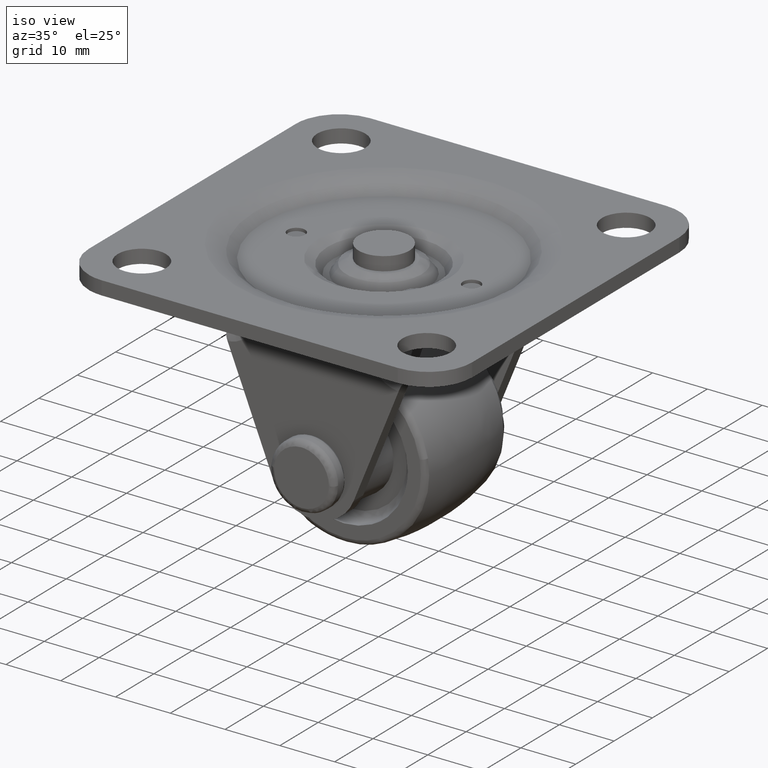
[diagram: clean part render]
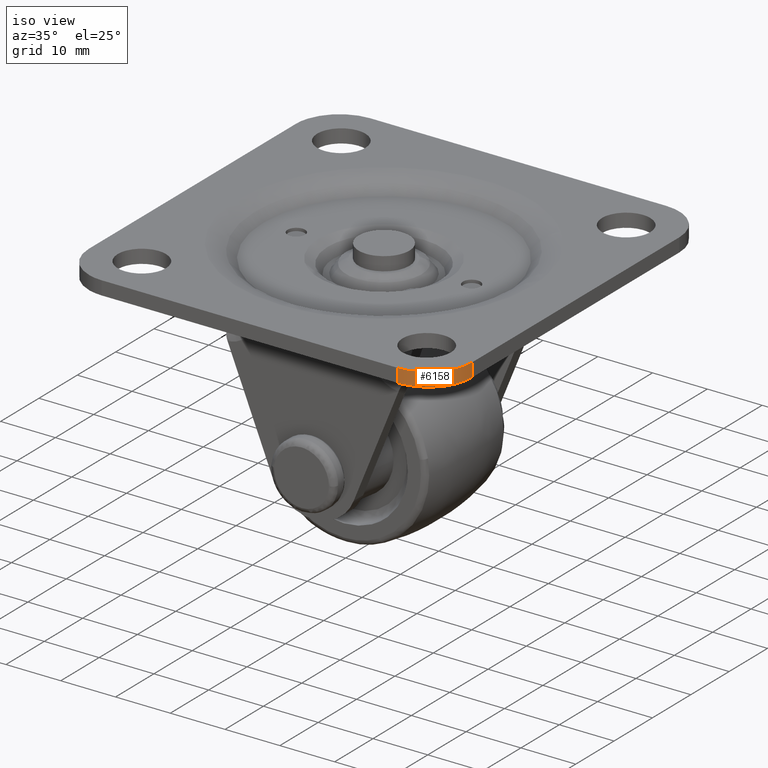
[diagram: same view with one face highlighted and labeled with its STEP entity id]
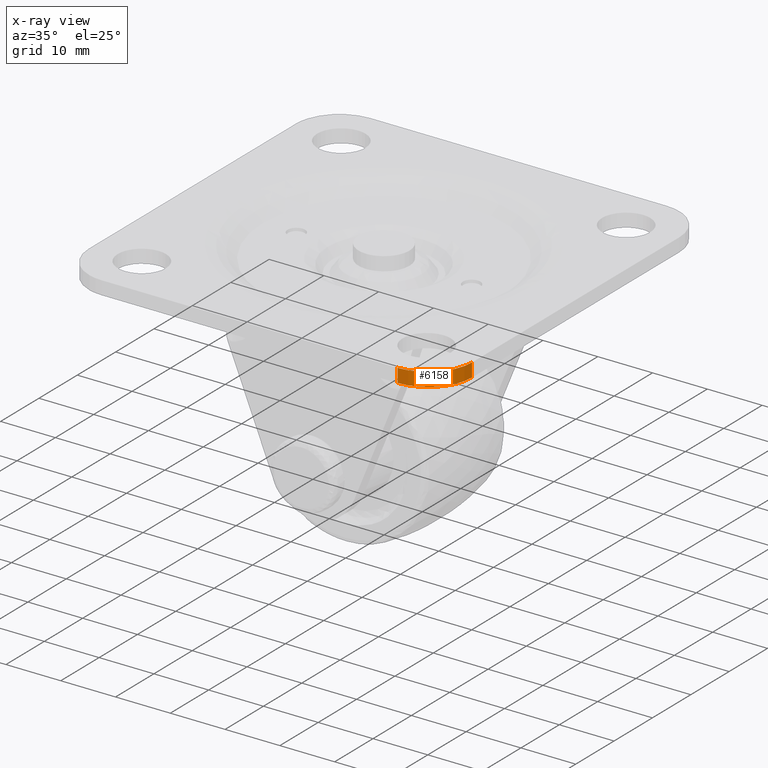
[diagram: x-ray of the same camera — body ghosted, the highlighted face saturated]
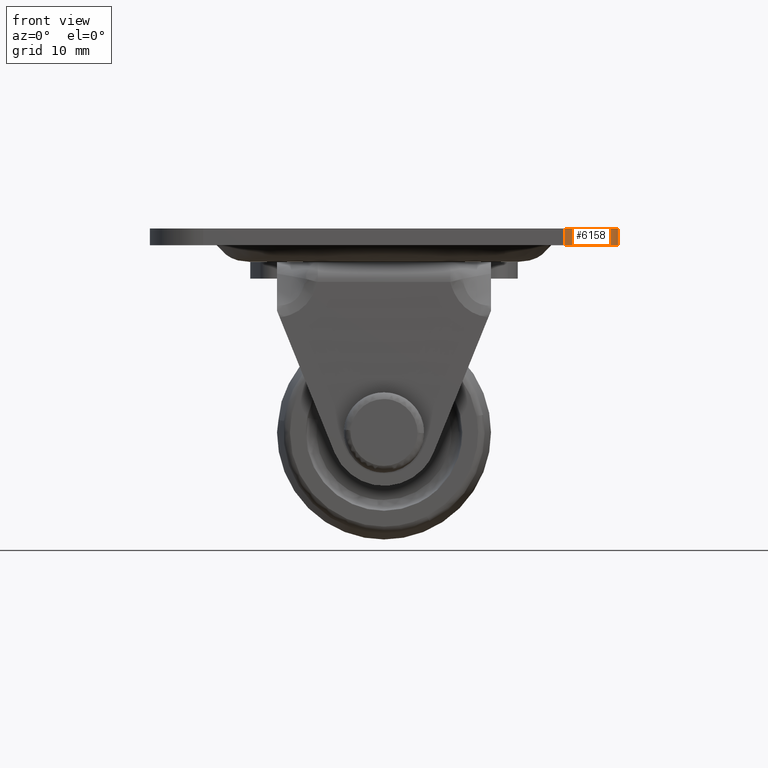
[diagram: same view with one face highlighted and labeled with its STEP entity id]
A machine part, iso view. The second image highlights one B-rep face of the part: STEP entity #6158.
The next image is the same camera in x-ray: the body ghosted, the highlighted face saturated — about 0% of this face is hidden behind the body in this view.
A second angle (front view) of the same face is appended — the face is thin or edge-on in the first view.
In plain terms, the highlighted face is a freeform B-spline surface patch.
Its self-contained STEP definition (entity closure, byte-faithful):
#6079=CARTESIAN_POINT('',(35.0,-26.999999860373649,30.500000000000000));
#6080=VERTEX_POINT('',#6079);
#6086=CARTESIAN_POINT('',(35.0,-26.999999860373649,28.0));
#6087=VERTEX_POINT('',#6086);
#6088=CARTESIAN_POINT('',(35.0,-26.999999860373649,28.0));
#6089=CARTESIAN_POINT('',(35.0,-26.999999860373649,30.500000000000000));
#6090=QUASI_UNIFORM_CURVE('',1,(#6088,#6089),.UNSPECIFIED.,.F.,.U.);
#6091=EDGE_CURVE('',#6087,#6080,#6090,.T.);
#6102=CARTESIAN_POINT('',(34.992385772654863,-26.651044901077309,27.937500000000000));
#6103=CARTESIAN_POINT('',(34.992385772654863,-26.651044901077309,30.564062499999999));
#6104=CARTESIAN_POINT('',(35.383475927487872,-35.608482115672281,27.937500000000007));
#6105=CARTESIAN_POINT('',(35.383475927487872,-35.608482115672281,30.564062499999999));
#6106=CARTESIAN_POINT('',(26.439535263651820,-34.980343305855349,27.937500000000000));
#6107=CARTESIAN_POINT('',(26.439535263651820,-34.980343305855349,30.564062499999995));
#6115=(BOUNDED_SURFACE()B_SPLINE_SURFACE(1,2,((#6102,#6104,#6106),(#6103,#6105,#6107)),.UNSPECIFIED.,.F.,.F.,.U.)B_SPLINE_SURFACE_WITH_KNOTS((2,2),(3,3),(0.0,2.626562499999999),(0.0,14.333940318735880),.UNSPECIFIED.)GEOMETRIC_REPRESENTATION_ITEM()RATIONAL_B_SPLINE_SURFACE(((1.0,0.664513898535122,0.996233561259061),(1.0,0.664513898535122,0.996233561259061)))REPRESENTATION_ITEM('')SURFACE());
#6116=CARTESIAN_POINT('',(27.0,-35.0,30.500000000000000));
#6117=VERTEX_POINT('',#6116);
#6118=CARTESIAN_POINT('',(27.0,-35.0,30.500000000000000));
#6119=CARTESIAN_POINT('',(27.359963960946342,-35.000005404667213,30.500000000000050));
#6120=CARTESIAN_POINT('',(28.210817130357810,-34.942516563033493,30.499999999999979));
#6121=CARTESIAN_POINT('',(29.395567395262951,-34.668831999999497,30.500000000000028));
#6122=CARTESIAN_POINT('',(30.701912356516971,-34.137108193935831,30.499999999999961));
#6123=CARTESIAN_POINT('',(31.901868210928338,-33.387556811179167,30.500000000000089));
#6124=CARTESIAN_POINT('',(33.074928849631242,-32.284330743048123,30.499999999999911));
#6125=CARTESIAN_POINT('',(33.973166393263973,-31.025477655901760,30.500000000000021));
#6126=CARTESIAN_POINT('',(34.540166470171059,-29.767019377376510,30.499999999999989));
#6127=CARTESIAN_POINT('',(34.907436895689258,-28.439855949299972,30.500000000000291));
#6128=CARTESIAN_POINT('',(35.000094463846089,-27.556327783162189,30.499999999999851));
#6129=CARTESIAN_POINT('',(35.0,-26.999999860373649,30.500000000000000));
#6130=B_SPLINE_CURVE_WITH_KNOTS('',3,(#6118,#6119,#6120,#6121,#6122,#6123,#6124,#6125,#6126,#6127,#6128,#6129),.UNSPECIFIED.,.F.,.U.,(4,1,1,1,1,1,1,1,1,4),(0.000000056953516,1.079903375982202,2.552553656074307,3.632494976945413,5.301492013661520,6.774070336513016,8.443082800340690,9.915718918725261,10.897483038391581,12.566449541698340),.UNSPECIFIED.);
#6131=EDGE_CURVE('',#6117,#6080,#6130,.T.);
#6132=ORIENTED_EDGE('',*,*,#6131,.F.);
#6133=CARTESIAN_POINT('',(27.0,-35.0,28.0));
#6134=VERTEX_POINT('',#6133);
#6135=CARTESIAN_POINT('',(27.0,-35.0,28.0));
#6136=CARTESIAN_POINT('',(27.0,-35.0,30.500000000000000));
#6137=QUASI_UNIFORM_CURVE('',1,(#6135,#6136),.UNSPECIFIED.,.F.,.U.);
#6138=EDGE_CURVE('',#6134,#6117,#6137,.T.);
#6139=ORIENTED_EDGE('',*,*,#6138,.F.);
#6140=CARTESIAN_POINT('',(27.0,-35.0,28.0));
#6141=CARTESIAN_POINT('',(27.359963960946342,-35.000005404667213,28.000000000000021));
#6142=CARTESIAN_POINT('',(28.210817130357821,-34.942516563033493,27.999999999999989));
#6143=CARTESIAN_POINT('',(29.395567395275229,-34.668831999763633,28.000000000000028));
#6144=CARTESIAN_POINT('',(30.701912356433080,-34.137108195547263,27.999999999999950));
#6145=CARTESIAN_POINT('',(31.901868211240490,-33.387556805179592,28.000000000000089));
#6146=CARTESIAN_POINT('',(33.074928848712247,-32.284330760719051,27.999999999999940));
#6147=CARTESIAN_POINT('',(33.973166395819852,-31.025477606752339,28.0));
#6148=CARTESIAN_POINT('',(34.540166465593749,-29.767019464303161,28.0));
#6149=CARTESIAN_POINT('',(34.907436906248812,-28.439855749083652,28.000000000000270));
#6150=CARTESIAN_POINT('',(35.000094457812672,-27.556328045899249,27.999999999999890));
#6151=CARTESIAN_POINT('',(35.0,-26.999999860373649,28.0));
#6152=B_SPLINE_CURVE_WITH_KNOTS('',3,(#6140,#6141,#6142,#6143,#6144,#6145,#6146,#6147,#6148,#6149,#6150,#6151),.UNSPECIFIED.,.F.,.U.,(4,1,1,1,1,1,1,1,1,4),(0.000000056953516,1.079903375982202,2.552553656074307,3.632494976945413,5.301492013661520,6.774070336513016,8.443082800340690,9.915718918725261,10.897483038391581,12.566449541698340),.UNSPECIFIED.);
#6153=EDGE_CURVE('',#6134,#6087,#6152,.T.);
#6154=ORIENTED_EDGE('',*,*,#6153,.T.);
#6155=ORIENTED_EDGE('',*,*,#6091,.T.);
#6156=EDGE_LOOP('',(#6132,#6139,#6154,#6155));
#6157=FACE_OUTER_BOUND('',#6156,.T.);
#6158=ADVANCED_FACE('',(#6157),#6115,.T.);